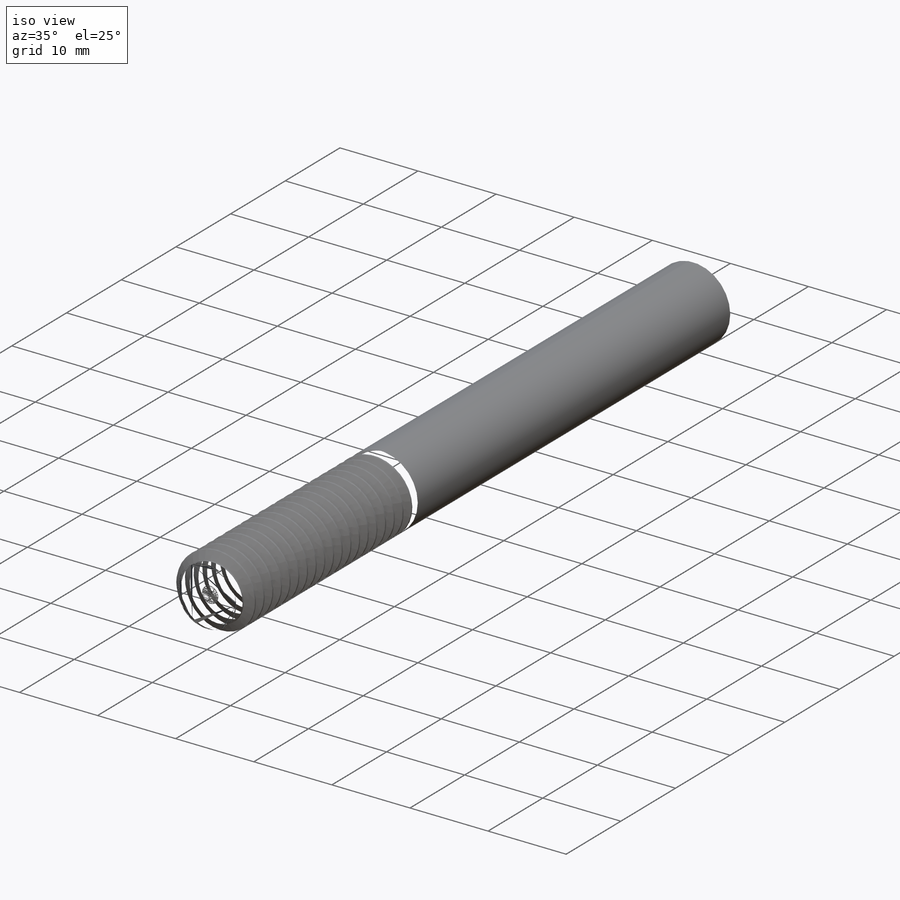
[diagram: iso view]
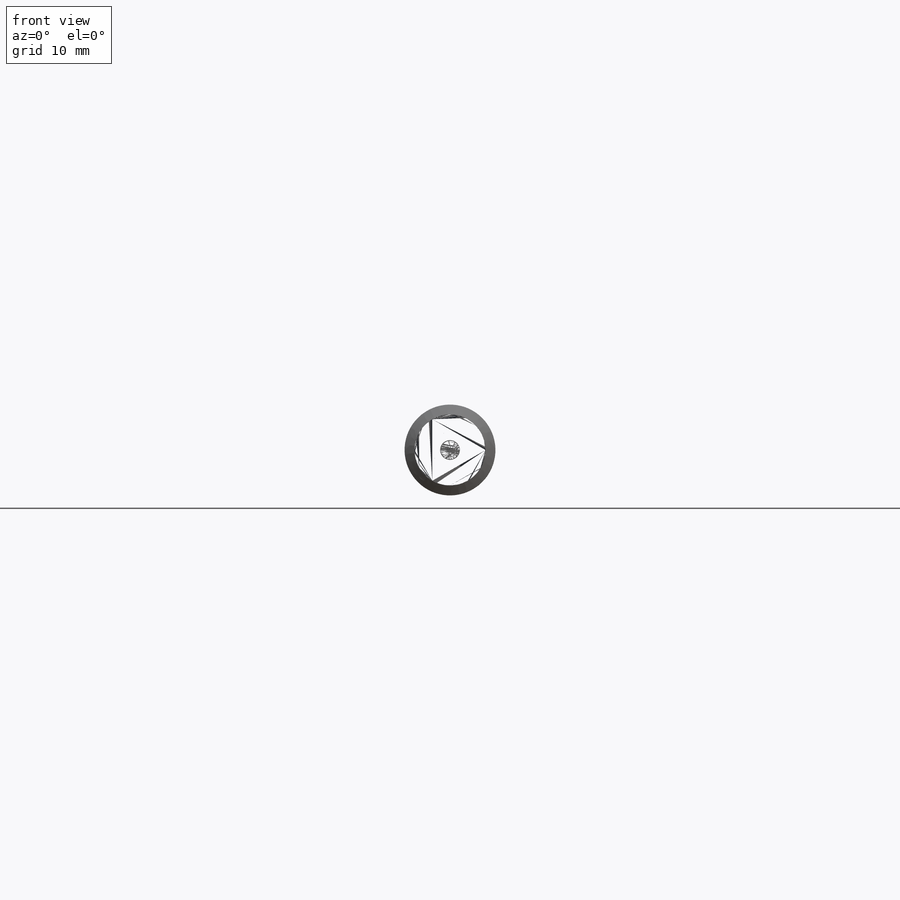
[diagram: front view]
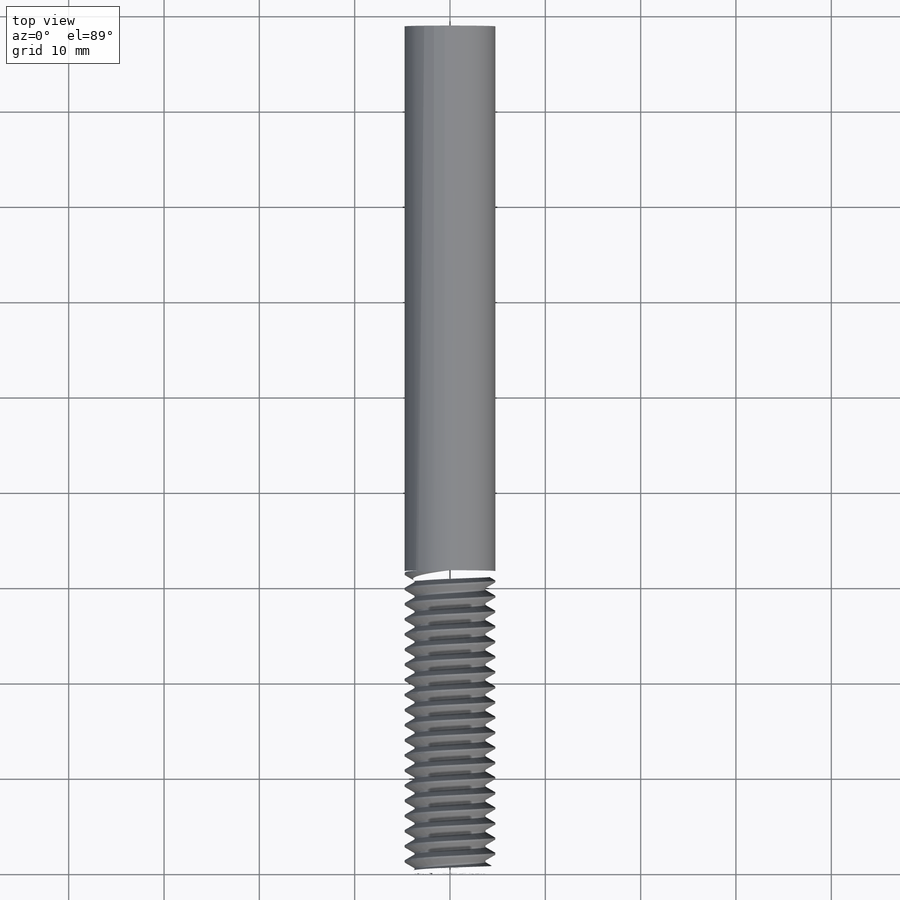
[diagram: top view]
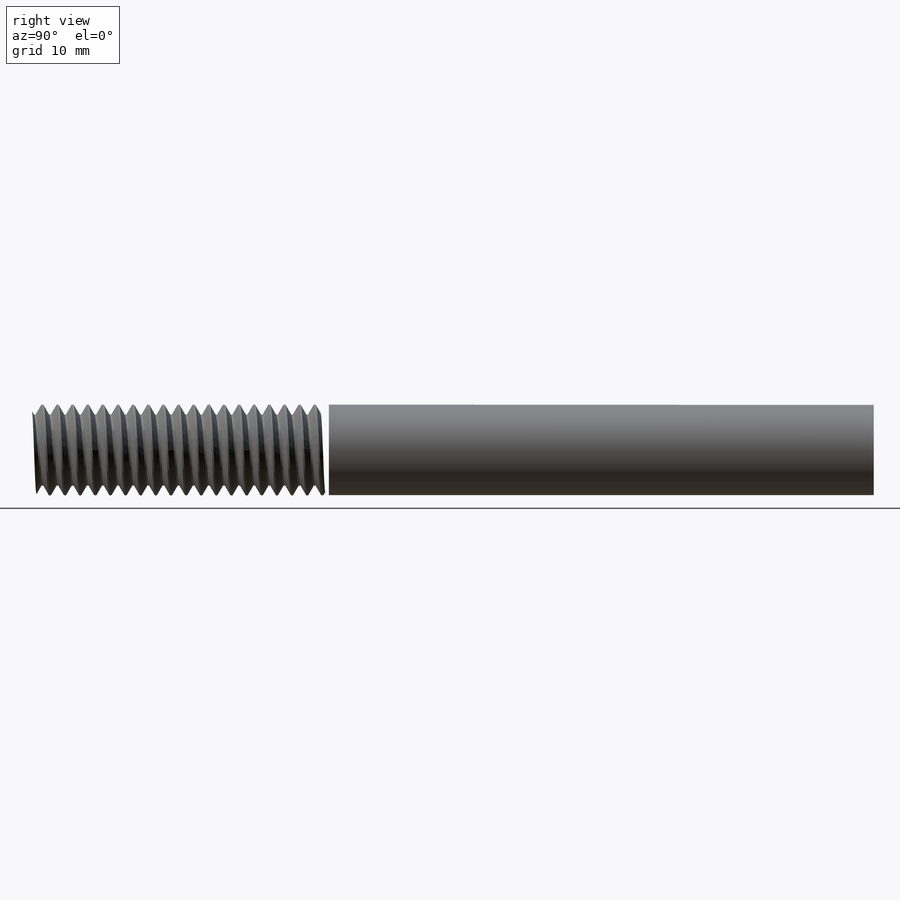
[diagram: right view]
SOLIDWORKS PART (.sldprt)
format: sldprt  version: not decoded by parser v0  size: 1,171,456 bytes
history: native  units: mm
features: sketch x8, chamfer x3, extrude x2, cut_extrude x2, material x1, helix x1, sweep x1, revolve x1 (+14 scaffold rows collapsed)
feature tree (33):
  scaffold x14  (default folders/planes/origin — collapsed)
  material  "Cast Alloy Steel"
  sketch  "Sketch1"  dims[OD=9.525mm]
  extrude  "Extrude1"  Depth=88.9mm screw length=88.9mm
  sketch  "Sketch2"
  helix  "Helix/Spiral1"  Pitch=34.925mm pitch=1.5875mm
  chamfer  "Chamfer3"  Distance=1.190625mm Angle=45deg
  sketch  "Sketch3"  dims[c1.D1=~0.198437mm c1.D2=~0.79375mm c1.D3=~1.069256mm c2.D3=60.0deg]
  sweep  "Cut-Sweep1"
  sketch  "Sketch5"  dims[c1.Thread min=31.75mm c1.D2=0.635mm c1.D3=0.3302mm c1.D1=0.3302mm c2.D2=0.127mm c2.D3=1.0541mm c3.D3=25.0deg c3.D1=4.7625mm c4.D1=45.0deg]
  revolve  "partially thread"  Angle=360deg
  sketch  "Sketch6"  dims[head dia=14.2875mm]
  extrude  "Extrude2"  Depth=9.525mm head depth=9.525mm
  sketch  "Sketch7"  dims[hex dia=7.9375mm]
  cut_extrude  "Cut-Extrude1"  Depth=5.953125mm
  sketch  "Sketch8"
  cut_extrude  "Cut-Extrude2"  Depth=0.9525mm
  chamfer  "Chamfer1"  Distance=0.9525mm Angle=45deg
  chamfer  "Chamfer2"  Distance=0.47625mm Angle=45deg
  sketch  "Sketch9"  dims[D1=~8.73125mm D2=9.525mm D3=14.2875mm D4=88.9mm Thread Length=~61.685158mm]
decode coverage: 15 of 18 modeling features carry decoded parameters
note: ~ marks probable driven/reference dimensions
note: suppression state not decoded; provenance and decode notes live in map.json
